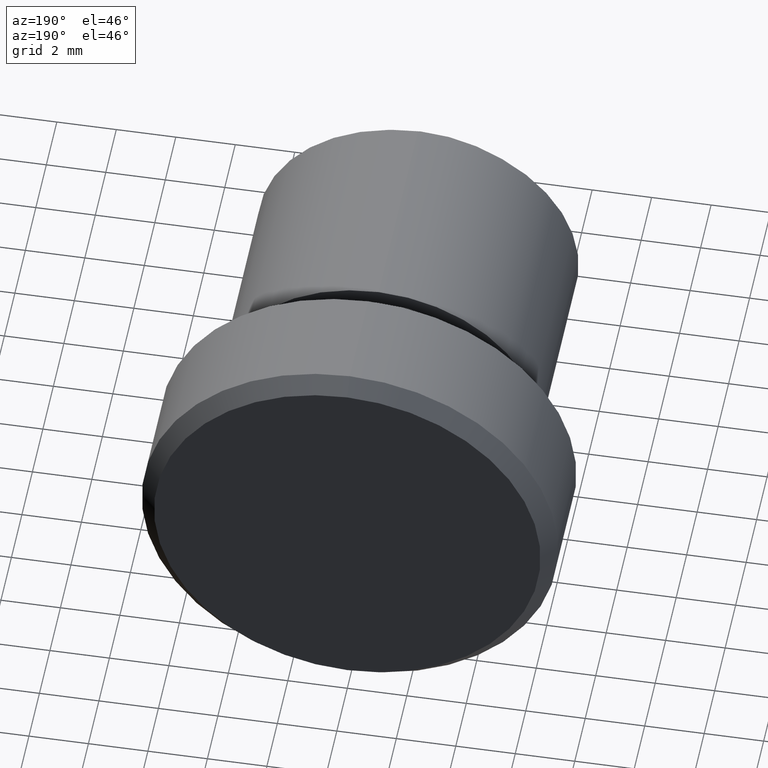
[diagram: clean part render]
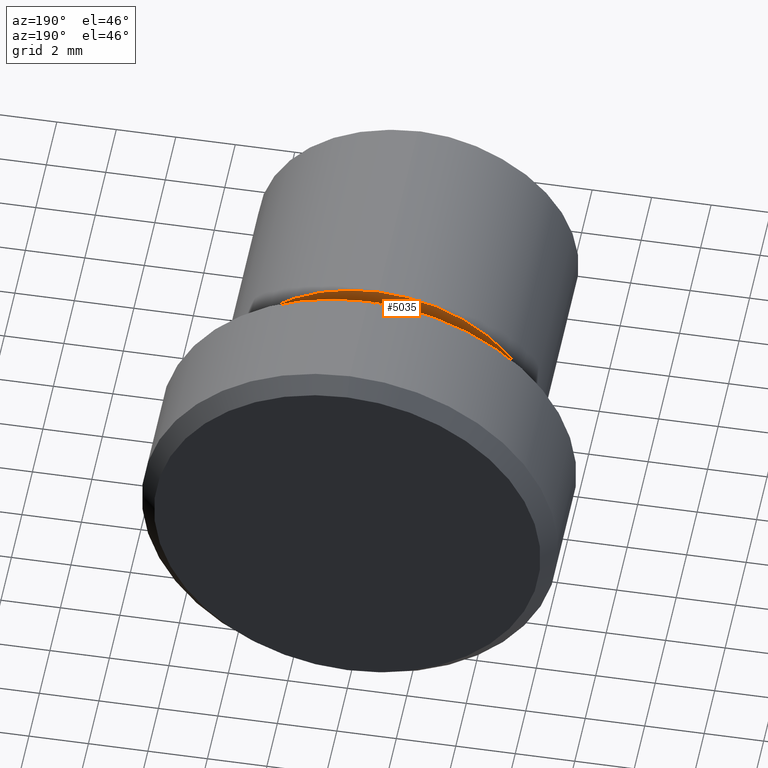
[diagram: same view with one face highlighted and labeled with its STEP entity id]
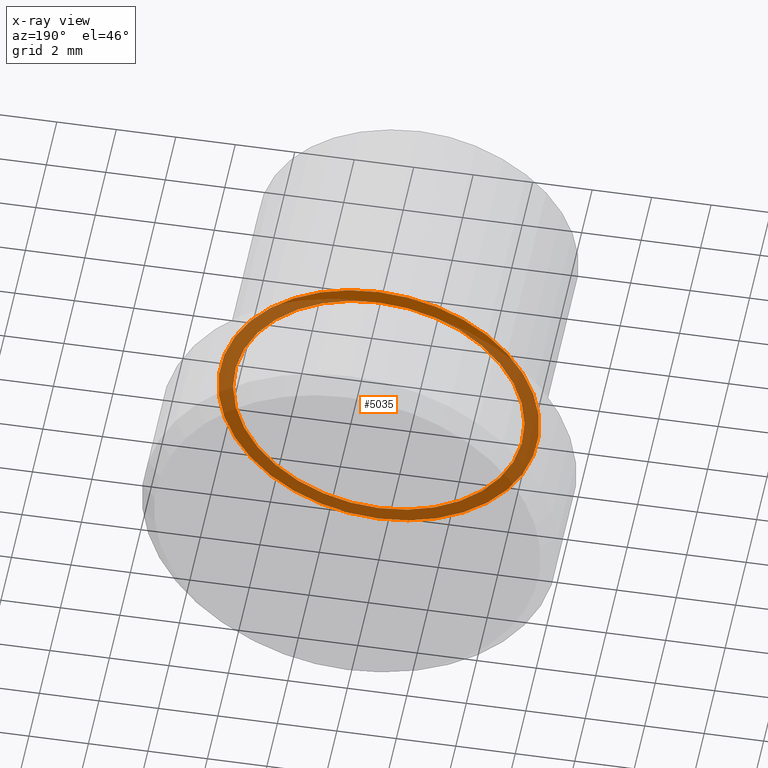
[diagram: x-ray of the same camera — body ghosted, the highlighted face saturated]
A machine part, auxiliary view. The second image highlights one B-rep face of the part: STEP entity #5035.
The next image is the same camera in x-ray: the body ghosted, the highlighted face saturated — about 81% of this face is hidden behind the body in this view.
In plain terms, the highlighted planar face has unit normal (-0, 1, 0).
Its self-contained STEP definition (entity closure, byte-faithful):
#330 = ORIENTED_EDGE ( 'NONE', *, *, #7965, .F. ) ;
#334 = DIRECTION ( 'NONE',  ( -0.0000000000000000000, 1.000000000000000000, -0.0000000000000000000 ) ) ;
#798 = DIRECTION ( 'NONE',  ( -0.0000000000000000000, 1.000000000000000000, -0.0000000000000000000 ) ) ;
#1015 = DIRECTION ( 'NONE',  ( 0.0000000000000000000, 0.0000000000000000000, 1.000000000000000000 ) ) ;
#1057 = FACE_OUTER_BOUND ( 'NONE', #9988, .T. ) ;
#1406 = VERTEX_POINT ( 'NONE', #3209 ) ;
#1788 = ORIENTED_EDGE ( 'NONE', *, *, #9428, .T. ) ;
#1874 = VERTEX_POINT ( 'NONE', #13081 ) ;
#2625 = DIRECTION ( 'NONE',  ( -0.0000000000000000000, 1.000000000000000000, -0.0000000000000000000 ) ) ;
#3032 = CARTESIAN_POINT ( 'NONE',  ( 0.0000000000000000000, 8.000000000000000000, -5.399999999999998600 ) ) ;
#3209 = CARTESIAN_POINT ( 'NONE',  ( 6.000769315822030700E-016, 8.000000000000000000, -4.899999999999999500 ) ) ;
#3467 = ORIENTED_EDGE ( 'NONE', *, *, #7815, .T. ) ;
#4184 = CIRCLE ( 'NONE', #4686, 5.399999999999998600 ) ;
#4200 = AXIS2_PLACEMENT_3D ( 'NONE', #12479, #334, #9029 ) ;
#4510 = AXIS2_PLACEMENT_3D ( 'NONE', #11052, #14201, #1015 ) ;
#4686 = AXIS2_PLACEMENT_3D ( 'NONE', #7442, #798, #10788 ) ;
#4723 = CIRCLE ( 'NONE', #4510, 5.399999999999998600 ) ;
#5035 = ADVANCED_FACE ( 'NONE', ( #1057, #6280 ), #6373, .T. ) ;
#5776 = CIRCLE ( 'NONE', #4200, 4.899999999999999500 ) ;
#5861 = CARTESIAN_POINT ( 'NONE',  ( 6.613092715395706500E-016, 8.000000000000000000, 5.399999999999998600 ) ) ;
#5898 = CARTESIAN_POINT ( 'NONE',  ( 0.0000000000000000000, 8.000000000000000000, 0.0000000000000000000 ) ) ;
#6081 = EDGE_CURVE ( 'NONE', #1874, #1406, #5776, .T. ) ;
#6273 = DIRECTION ( 'NONE',  ( -0.0000000000000000000, 1.000000000000000000, 0.0000000000000000000 ) ) ;
#6280 = FACE_BOUND ( 'NONE', #7012, .T. ) ;
#6321 = DIRECTION ( 'NONE',  ( 0.0000000000000000000, 0.0000000000000000000, 1.000000000000000000 ) ) ;
#6373 = PLANE ( 'NONE',  #13607 ) ;
#7012 = EDGE_LOOP ( 'NONE', ( #11016, #330 ) ) ;
#7442 = CARTESIAN_POINT ( 'NONE',  ( 0.0000000000000000000, 8.000000000000000000, 0.0000000000000000000 ) ) ;
#7815 = EDGE_CURVE ( 'NONE', #9292, #9121, #4184, .T. ) ;
#7965 = EDGE_CURVE ( 'NONE', #1406, #1874, #12782, .T. ) ;
#8066 = DIRECTION ( 'NONE',  ( 0.0000000000000000000, 0.0000000000000000000, 1.000000000000000000 ) ) ;
#9029 = DIRECTION ( 'NONE',  ( 0.0000000000000000000, 0.0000000000000000000, 1.000000000000000000 ) ) ;
#9121 = VERTEX_POINT ( 'NONE', #5861 ) ;
#9292 = VERTEX_POINT ( 'NONE', #3032 ) ;
#9428 = EDGE_CURVE ( 'NONE', #9121, #9292, #4723, .T. ) ;
#9988 = EDGE_LOOP ( 'NONE', ( #3467, #1788 ) ) ;
#10028 = AXIS2_PLACEMENT_3D ( 'NONE', #5898, #2625, #8066 ) ;
#10788 = DIRECTION ( 'NONE',  ( 0.0000000000000000000, 0.0000000000000000000, 1.000000000000000000 ) ) ;
#11016 = ORIENTED_EDGE ( 'NONE', *, *, #6081, .F. ) ;
#11052 = CARTESIAN_POINT ( 'NONE',  ( 0.0000000000000000000, 8.000000000000000000, 0.0000000000000000000 ) ) ;
#12479 = CARTESIAN_POINT ( 'NONE',  ( 0.0000000000000000000, 8.000000000000000000, 0.0000000000000000000 ) ) ;
#12782 = CIRCLE ( 'NONE', #10028, 4.899999999999999500 ) ;
#13081 = CARTESIAN_POINT ( 'NONE',  ( 0.0000000000000000000, 8.000000000000000000, 4.899999999999999500 ) ) ;
#13607 = AXIS2_PLACEMENT_3D ( 'NONE', #14100, #6273, #6321 ) ;
#14100 = CARTESIAN_POINT ( 'NONE',  ( 4.899999999999999500, 8.000000000000000000, 0.0000000000000000000 ) ) ;
#14201 = DIRECTION ( 'NONE',  ( -0.0000000000000000000, 1.000000000000000000, -0.0000000000000000000 ) ) ;